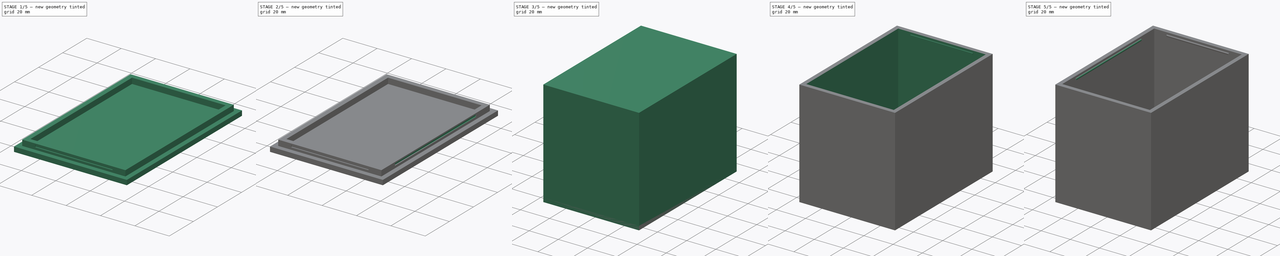
[diagram: build sequence overview — one tinted view per stage of 5, left to right]
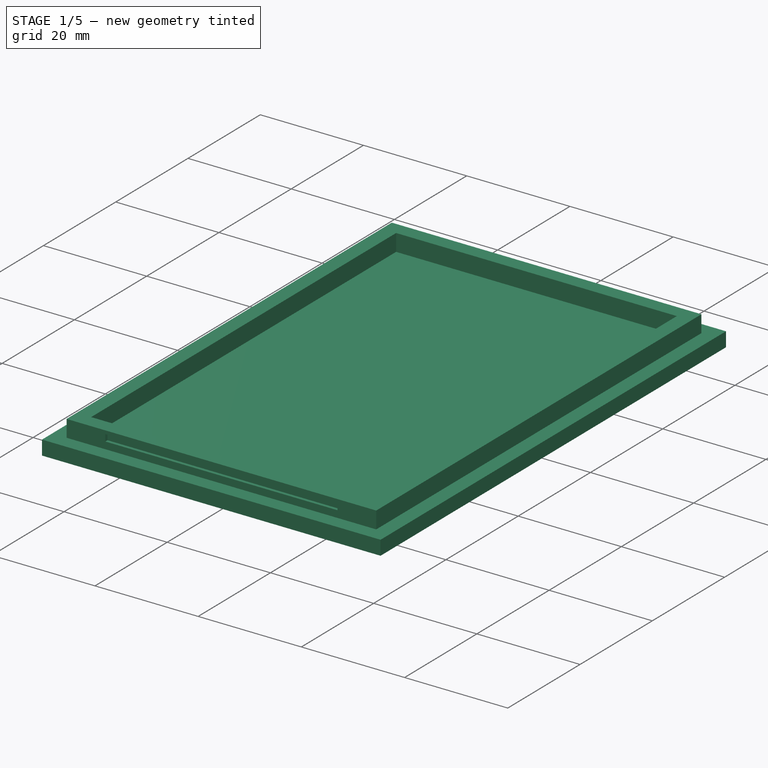
[diagram: stage 1 of 5 — iso view after this stage's code; geometry added in this stage tinted green]
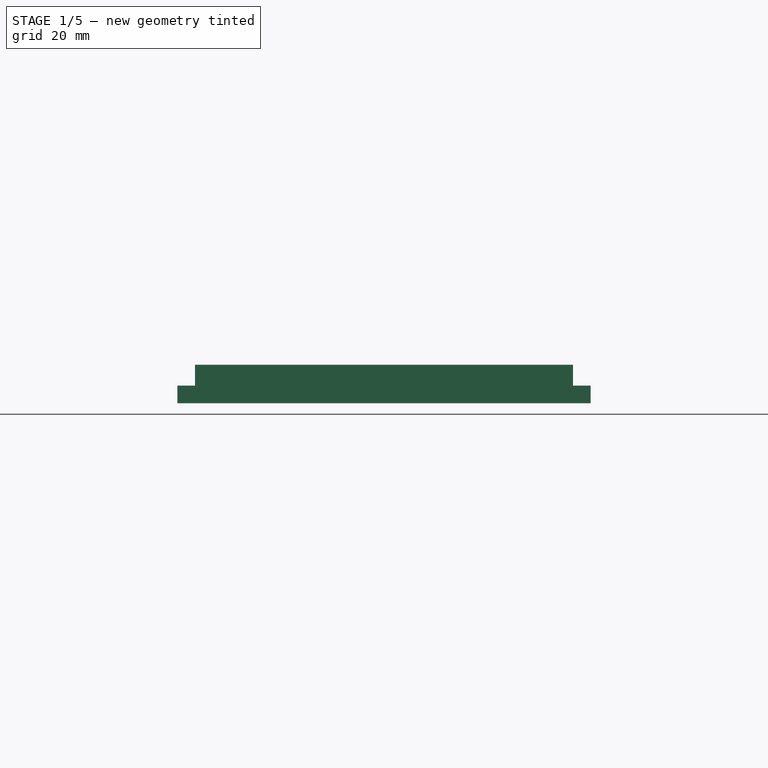
[diagram: stage 1 of 5 — front view after this stage's code; geometry added in this stage tinted green]
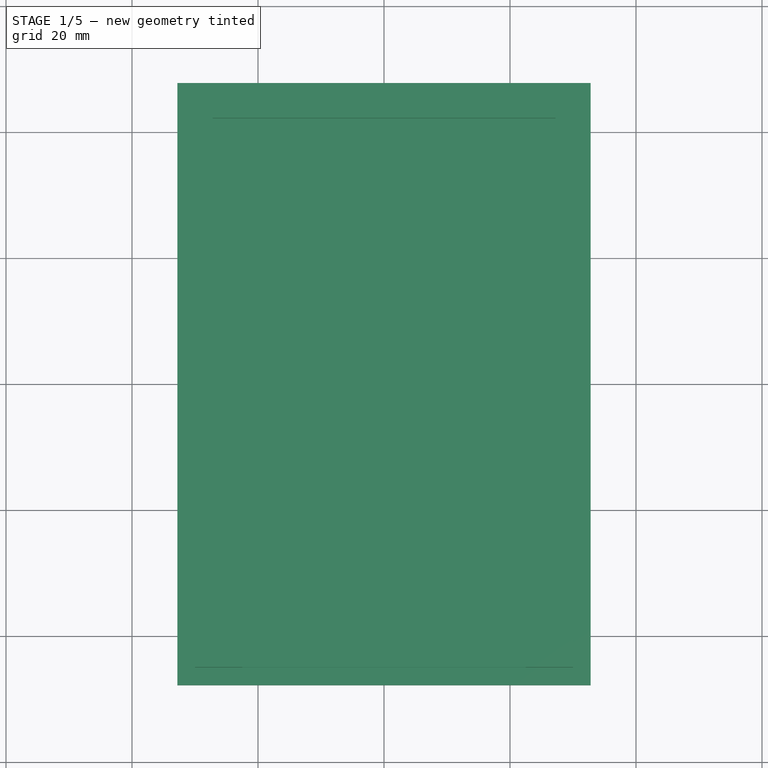
[diagram: stage 1 of 5 — top view after this stage's code; geometry added in this stage tinted green]
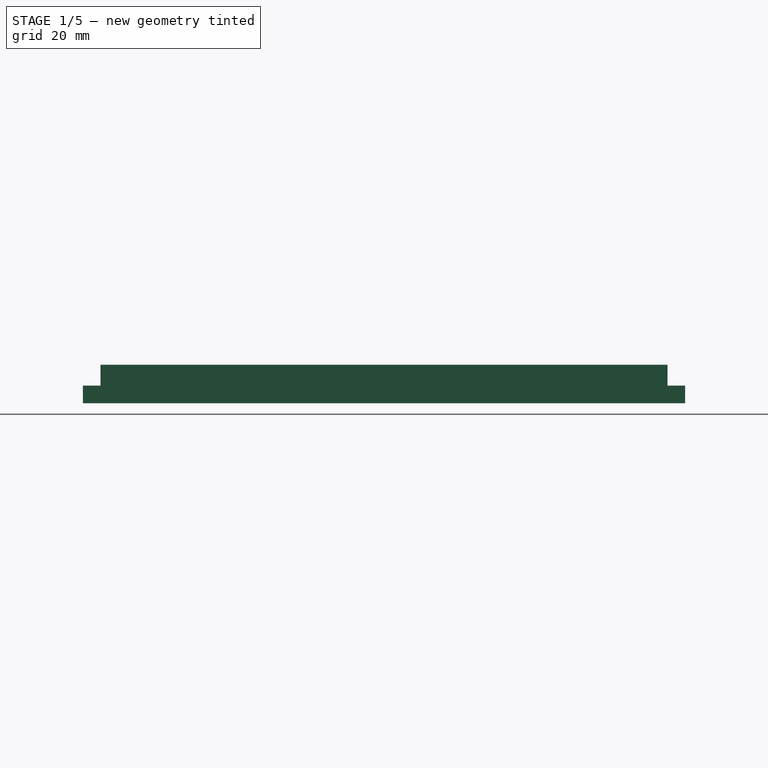
[diagram: stage 1 of 5 — right view after this stage's code; geometry added in this stage tinted green]
FCSTD DOCUMENT  (FreeCAD 0.19R)
Label: boitier
License: CreativeCommons Attribution-ShareAlike
LicenseURL: http://creativecommons.org/licenses/by-sa/4.0/
objects: Sketcher::SketchObject×15, PartDesign::Pad×7, PartDesign::Pocket×7, PartDesign::Fillet×2, PartDesign::Body×2, Spreadsheet::Sheet×1, PartDesign::Chamfer×1, App::MeasureDistance×1, PartDesign::Hole×1, App::Part×1
note: 53 computed .brp shape members not serialized (recipe doc carries the construction recipe); baked Part::Feature solids carry a one-line shape summary decoded from their .brp

FEATURE [Sketcher::SketchObject] Sketch006
  FullyConstrained = true
  MapMode = 5
  Support = -> [XY_Plane002]
  expr: Constraints[13] = <<vars>>.outsideWidth
  expr: Constraints[12] = <<vars>>.outsideLength
  sketch-geometry (5):
    g0: LineSegment StartX=32.8 StartY=-47.8 StartZ=0 EndX=32.8 EndY=47.8 EndZ=0
    g1: LineSegment StartX=32.8 StartY=47.8 StartZ=0 EndX=-32.8 EndY=47.8 EndZ=0
    g2: LineSegment StartX=-32.8 StartY=47.8 StartZ=0 EndX=-32.8 EndY=-47.8 EndZ=0
    g3: LineSegment StartX=-32.8 StartY=-47.8 StartZ=0 EndX=32.8 EndY=-47.8 EndZ=0
    g4: Circle CenterX=0 CenterY=0 CenterZ=0 NormalX=0 NormalY=0 NormalZ=1 AngleXU=0 Radius=57.9714
  constraints (14):
    c: Coincident(g0,g1)
    c: Coincident(g1,g2)
    c: Coincident(g2,g3)
    c: Coincident(g3,g0)
    c: PointOnObject(g0,g4)
    c: PointOnObject(g1,g4)
    c: PointOnObject(g2,g4)
    c: PointOnObject(g3,g4)
    c: Coincident(g4,g-1)
    c: Equal(g2,g0)
    c: Equal(g1,g3)
    c: Vertical(g2)
    c: DistanceY(g2,g2) = 95.6
    c: DistanceX(g1,g1) = 65.6
FEATURE [PartDesign::Pad] Pad005
  AllowMultiFace = false
  Direction = (1,1,1)
  Length = 2.8
  Length2 = 100
  Profile = -> Sketch006
  Type = 0
  expr: Length = <<vars>>.wallThickness
FEATURE [Sketcher::SketchObject] Sketch007
  FullyConstrained = true
  MapMode = 5
  Placement = pos=(0,0,2.8) rot=(0,0,1;0rad)
  Support = -> [Pad005]
  expr: Constraints[13] = <<vars>>.insideWidth
  expr: Constraints[12] = <<vars>>.insideLength
  sketch-geometry (5):
    g0: LineSegment StartX=30 StartY=-45 StartZ=0 EndX=30 EndY=45 EndZ=0
    g1: LineSegment StartX=30 StartY=45 StartZ=0 EndX=-30 EndY=45 EndZ=0
    g2: LineSegment StartX=-30 StartY=45 StartZ=0 EndX=-30 EndY=-45 EndZ=0
    g3: LineSegment StartX=-30 StartY=-45 StartZ=0 EndX=30 EndY=-45 EndZ=0
    g4: Circle CenterX=0 CenterY=0 CenterZ=0 NormalX=0 NormalY=0 NormalZ=1 AngleXU=0 Radius=54.0833
  constraints (14):
    c: Coincident(g0,g1)
    c: Coincident(g1,g2)
    c: Coincident(g2,g3)
    c: Coincident(g3,g0)
    c: PointOnObject(g0,g4)
    c: PointOnObject(g1,g4)
    c: PointOnObject(g2,g4)
    c: PointOnObject(g3,g4)
    c: Coincident(g4,g-1)
    c: Equal(g2,g0)
    c: Equal(g1,g3)
    c: Horizontal(g1)
    c: DistanceY(g2,g2) = 90
    c: DistanceX(g1,g1) = 60
FEATURE [PartDesign::Pad] Pad006
  AllowMultiFace = false
  BaseFeature = -> Pad005
  Direction = (1,1,1)
  Length = 3.3
  Length2 = 100
  Profile = -> Sketch007
  Type = 0
  expr: Length = <<vars>>.lidLipDepth
FEATURE [Sketcher::SketchObject] Sketch008
  FullyConstrained = true
  MapMode = 5
  Placement = pos=(0,0,6.1) rot=(0,0,1;0rad)
  Support = -> [Pad006]
  expr: Constraints[13] = <<vars>>.insideWidth - <<vars>>.wallThickness * 2
  expr: Constraints[12] = <<vars>>.insideLength - <<vars>>.wallThickness * 2
  sketch-geometry (5):
    g0: LineSegment StartX=27.2 StartY=-42.2 StartZ=0 EndX=27.2 EndY=42.2 EndZ=0
    g1: LineSegment StartX=27.2 StartY=42.2 StartZ=0 EndX=-27.2 EndY=42.2 EndZ=0
    g2: LineSegment StartX=-27.2 StartY=42.2 StartZ=0 EndX=-27.2 EndY=-42.2 EndZ=0
    g3: LineSegment StartX=-27.2 StartY=-42.2 StartZ=0 EndX=27.2 EndY=-42.2 EndZ=0
    g4: Circle CenterX=0 CenterY=0 CenterZ=0 NormalX=0 NormalY=0 NormalZ=1 AngleXU=0 Radius=50.2064
  constraints (14):
    c: Coincident(g0,g1)
    c: Coincident(g1,g2)
    c: Coincident(g2,g3)
    c: Coincident(g3,g0)
    c: PointOnObject(g0,g4)
    c: PointOnObject(g1,g4)
    c: PointOnObject(g2,g4)
    c: PointOnObject(g3,g4)
    c: Coincident(g4,g-1)
    c: Equal(g2,g0)
    c: Equal(g1,g3)
    c: Vertical(g2)
    c: DistanceY(g2,g2) = 84.4
    c: DistanceX(g1,g1) = 54.4
FEATURE [PartDesign::Pocket] Pocket001
  AllowMultiFace = false
  BaseFeature = -> Pad006
  Length = 3.3
  Length2 = 100
  Profile = -> Sketch008
  Type = 0
  expr: Length = <<vars>>.lidLipDepth
FEATURE [Sketcher::SketchObject] Sketch009
  ExternalGeometry = -> [Pocket001]
  FullyConstrained = true
  MapMode = 5
  Placement = pos=(5.4e-15,-45,0) rot=(1,0,0;1.5708rad)
  Support = -> [Pocket001]
  expr: Constraints[19] = <<vars>>.snapInset
  expr: Constraints[18] = <<vars>>.snapHeight
  expr: Constraints[17] = <<vars>>.snapWidthLength
  sketch-geometry (7):
    g0: LineSegment StartX=-30 StartY=2.8 StartZ=0 EndX=6.1817e-12 EndY=2.8 EndZ=0
    g1: LineSegment StartX=6.1817e-12 StartY=2.8 StartZ=0 EndX=30 EndY=2.8 EndZ=0
    g2: LineSegment StartX=22.5 StartY=5.45 StartZ=0 EndX=-22.5 EndY=5.45 EndZ=0
    g3: LineSegment StartX=-22.5 StartY=5.45 StartZ=0 EndX=-22.5 EndY=4.15 EndZ=0
    g4: LineSegment StartX=-22.5 StartY=4.15 StartZ=0 EndX=22.5 EndY=4.15 EndZ=0
    g5: LineSegment StartX=22.5 StartY=4.15 StartZ=0 EndX=22.5 EndY=5.45 EndZ=0
    g6: Circle CenterX=0 CenterY=4.8 CenterZ=0 NormalX=0 NormalY=0 NormalZ=1 AngleXU=0 Radius=22.5094
  constraints (20):
    c: Coincident(g-5,g0)
    c: Coincident(g0,g1)
    c: Coincident(g1,g-6)
    c: Equal(g1,g0)
    c: Horizontal(g1)
    c: Coincident(g2,g3)
    c: Coincident(g3,g4)
    c: Coincident(g4,g5)
    c: Coincident(g5,g2)
    c: PointOnObject(g2,g6)
    c: PointOnObject(g3,g6)
    c: PointOnObject(g4,g6)
    c: PointOnObject(g5,g6)
    c: PointOnObject(g6,g-2)
    c: Equal(g3,g5)
    c: Equal(g2,g4)
    c: Vertical(g3)
    c: DistanceX(g2,g2) = 45
    c: DistanceY(g3,g3) = 1.3
    c: DistanceY(g0,g6) = 2
FEATURE [PartDesign::Pocket] Pocket002
  AllowMultiFace = false
  BaseFeature = -> Pocket001
  Length = 0.6
  Length2 = 100
  Profile = -> Sketch009
  Type = 0
  expr: Length = <<vars>>.snapDepth
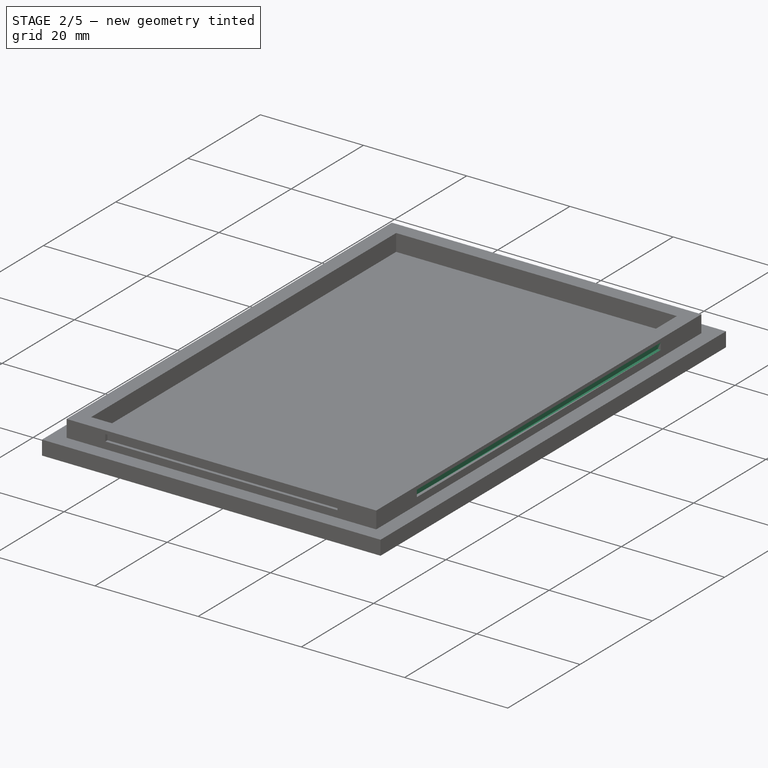
[diagram: stage 2 of 5 — iso view after this stage's code; geometry added in this stage tinted green]
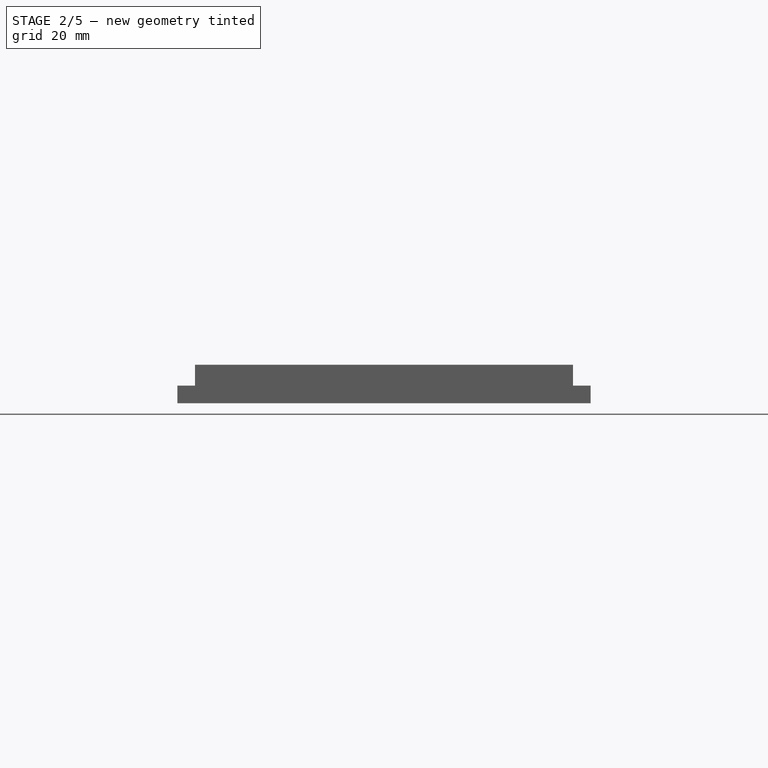
[diagram: stage 2 of 5 — front view after this stage's code; geometry added in this stage tinted green]
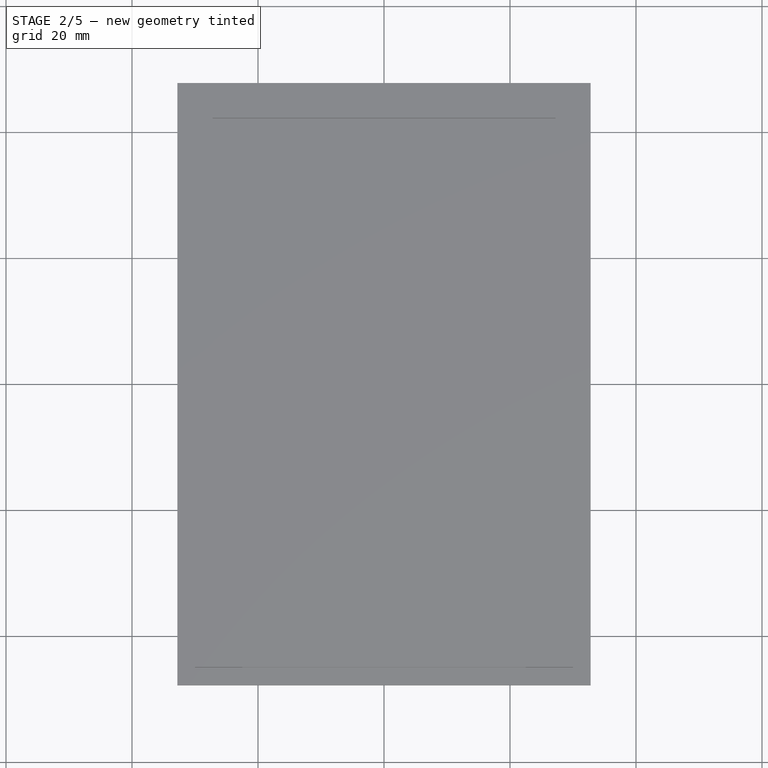
[diagram: stage 2 of 5 — top view after this stage's code; geometry added in this stage tinted green]
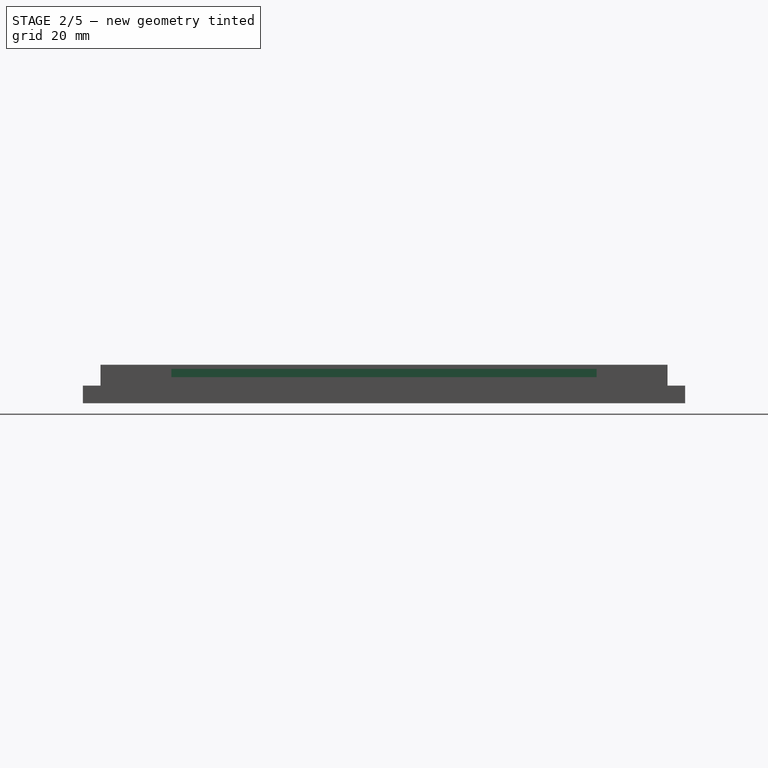
[diagram: stage 2 of 5 — right view after this stage's code; geometry added in this stage tinted green]
FEATURE [Sketcher::SketchObject] Sketch010
  ExternalGeometry = -> [Pocket002]
  FullyConstrained = true
  MapMode = 5
  Placement = pos=(0,45,0) rot=(0,0.707107,0.707107;3.14159rad)
  Support = -> [Pocket002]
  expr: Constraints[19] = <<vars>>.snapInset
  expr: Constraints[13] = <<vars>>.snapWidthLength
  expr: Constraints[12] = <<vars>>.snapHeight
  sketch-geometry (7):
    g0: LineSegment StartX=22.5 StartY=5.45 StartZ=0 EndX=-22.5 EndY=5.45 EndZ=0
    g1: LineSegment StartX=-22.5 StartY=5.45 StartZ=0 EndX=-22.5 EndY=4.15 EndZ=0
    g2: LineSegment StartX=-22.5 StartY=4.15 StartZ=0 EndX=22.5 EndY=4.15 EndZ=0
    g3: LineSegment StartX=22.5 StartY=4.15 StartZ=0 EndX=22.5 EndY=5.45 EndZ=0
    g4: Circle CenterX=0 CenterY=4.8 CenterZ=0 NormalX=0 NormalY=0 NormalZ=1 AngleXU=0 Radius=22.5094
    g5: LineSegment StartX=-30 StartY=2.8 StartZ=0 EndX=3.6e-15 EndY=2.8 EndZ=0
    g6: LineSegment StartX=4.5e-15 StartY=2.8 StartZ=0 EndX=30 EndY=2.8 EndZ=0
  constraints (20):
    c: Coincident(g0,g1)
    c: Coincident(g1,g2)
    c: Coincident(g2,g3)
    c: Coincident(g3,g0)
    c: Equal(g0,g2)
    c: PointOnObject(g0,g4)
    c: PointOnObject(g1,g4)
    c: PointOnObject(g2,g4)
    c: PointOnObject(g3,g4)
    c: PointOnObject(g4,g-2)
    c: Equal(g1,g3)
    c: Horizontal(g0)
    c: DistanceY(g1,g1) = 1.3
    c: DistanceX(g0,g0) = 45
    c: Coincident(g-5,g5)
    c: Coincident(g5,g6)
    c: Coincident(g6,g-6)
    c: Equal(g6,g5)
    c: Horizontal(g5)
    c: DistanceY(g5,g4) = 2
FEATURE [PartDesign::Pocket] Pocket003
  AllowMultiFace = false
  BaseFeature = -> Pocket002
  Length = 0.6
  Length2 = 100
  Profile = -> Sketch010
  Type = 0
  expr: Length = <<vars>>.snapDepth
FEATURE [Sketcher::SketchObject] Sketch011
  ExternalGeometry = -> [Pocket003]
  FullyConstrained = true
  MapMode = 5
  Placement = pos=(30,2.20113e-11,0) rot=(0.57735,0.57735,0.57735;2.0944rad)
  Support = -> [Pocket003]
  expr: Constraints[19] = <<vars>>.snapInset
  expr: Constraints[18] = <<vars>>.snapLengthLength
  expr: Constraints[17] = <<vars>>.snapHeight
  sketch-geometry (7):
    g0: LineSegment StartX=-45 StartY=2.8 StartZ=0 EndX=-1.50635e-11 EndY=2.8 EndZ=0
    g1: LineSegment StartX=-1.50635e-11 StartY=2.8 StartZ=0 EndX=45 EndY=2.8 EndZ=0
    g2: LineSegment StartX=33.75 StartY=4.15 StartZ=0 EndX=33.75 EndY=5.45 EndZ=0
    g3: LineSegment StartX=33.75 StartY=5.45 StartZ=0 EndX=-33.75 EndY=5.45 EndZ=0
    g4: LineSegment StartX=-33.75 StartY=5.45 StartZ=0 EndX=-33.75 EndY=4.15 EndZ=0
    g5: LineSegment StartX=-33.75 StartY=4.15 StartZ=0 EndX=33.75 EndY=4.15 EndZ=0
    g6: Circle CenterX=0 CenterY=4.8 CenterZ=0 NormalX=0 NormalY=0 NormalZ=1 AngleXU=0 Radius=33.7563
  constraints (20):
    c: Coincident(g-6,g0)
    c: Coincident(g0,g1)
    c: Coincident(g1,g-5)
    c: Equal(g0,g1)
    c: Horizontal(g1)
    c: Coincident(g2,g3)
    c: Coincident(g3,g4)
    c: Coincident(g4,g5)
    c: Coincident(g5,g2)
    c: Equal(g2,g4)
    c: PointOnObject(g2,g6)
    c: PointOnObject(g3,g6)
    c: PointOnObject(g4,g6)
    c: PointOnObject(g5,g6)
    c: PointOnObject(g6,g-2)
    c: Equal(g3,g5)
    c: Horizontal(g3)
    c: DistanceY(g4,g4) = 1.3
    c: DistanceX(g5,g5) = 67.5
    c: DistanceY(g0,g6) = 2
FEATURE [PartDesign::Pocket] Pocket004
  AllowMultiFace = false
  BaseFeature = -> Pocket003
  Length = 0.6
  Length2 = 100
  Profile = -> Sketch011
  Type = 0
  expr: Length = <<vars>>.snapDepth
FEATURE [Sketcher::SketchObject] Sketch012
  ExternalGeometry = -> [Pocket004]
  FullyConstrained = true
  MapMode = 5
  Placement = pos=(-30,7.2003e-12,0) rot=(-0.57735,0.57735,0.57735;4.18879rad)
  Support = -> [Pocket004]
  expr: Constraints[19] = <<vars>>.snapInset
  expr: Constraints[18] = <<vars>>.snapLengthLength
  expr: Constraints[17] = <<vars>>.snapHeight
  sketch-geometry (7):
    g0: LineSegment StartX=-45 StartY=2.8 StartZ=0 EndX=2.487e-13 EndY=2.8 EndZ=0
    g1: LineSegment StartX=2.504e-13 StartY=2.8 StartZ=0 EndX=45 EndY=2.8 EndZ=0
    g2: LineSegment StartX=33.75 StartY=4.15 StartZ=0 EndX=33.75 EndY=5.45 EndZ=0
    g3: LineSegment StartX=33.75 StartY=5.45 StartZ=0 EndX=-33.75 EndY=5.45 EndZ=0
    g4: LineSegment StartX=-33.75 StartY=5.45 StartZ=0 EndX=-33.75 EndY=4.15 EndZ=0
    g5: LineSegment StartX=-33.75 StartY=4.15 StartZ=0 EndX=33.75 EndY=4.15 EndZ=0
    g6: Circle CenterX=0 CenterY=4.8 CenterZ=0 NormalX=0 NormalY=0 NormalZ=1 AngleXU=0 Radius=33.7563
  constraints (20):
    c: Coincident(g-5,g0)
    c: Coincident(g0,g1)
    c: Coincident(g1,g-6)
    c: Equal(g0,g1)
    c: Horizontal(g1)
    c: Coincident(g2,g3)
    c: Coincident(g3,g4)
    c: Coincident(g4,g5)
    c: Coincident(g5,g2)
    c: Equal(g2,g4)
    c: PointOnObject(g2,g6)
    c: PointOnObject(g3,g6)
    c: PointOnObject(g4,g6)
    c: PointOnObject(g5,g6)
    c: PointOnObject(g6,g-2)
    c: Equal(g3,g5)
    c: Horizontal(g3)
    c: DistanceY(g4,g4) = 1.3
    c: DistanceX(g3,g3) = 67.5
    c: DistanceY(g0,g6) = 2
FEATURE [PartDesign::Pocket] Pocket005
  AllowMultiFace = false
  BaseFeature = -> Pocket004
  Length = 0.6
  Length2 = 100
  Profile = -> Sketch012
  Type = 0
  expr: Length = <<vars>>.snapDepth
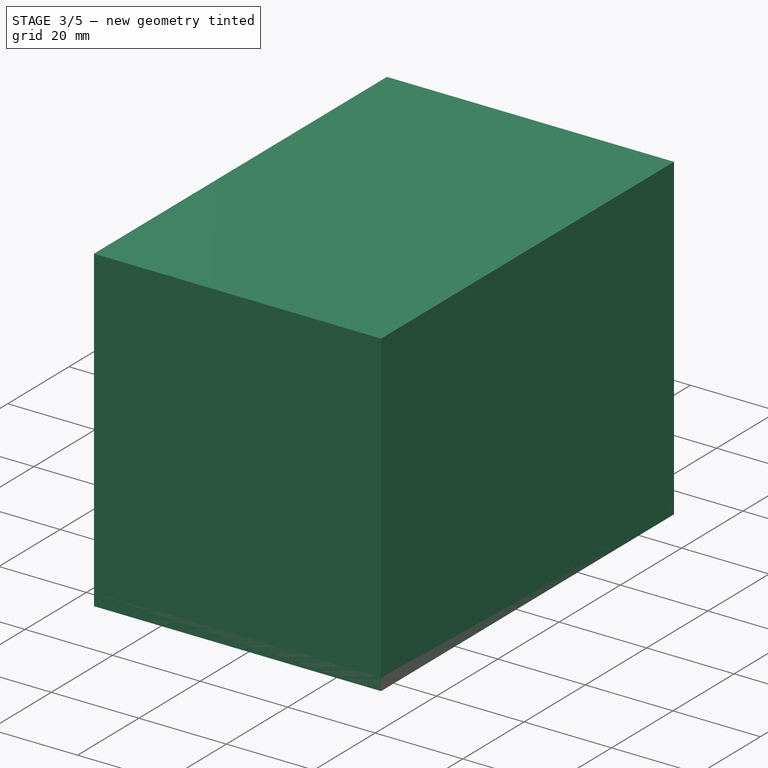
[diagram: stage 3 of 5 — iso view after this stage's code; geometry added in this stage tinted green]
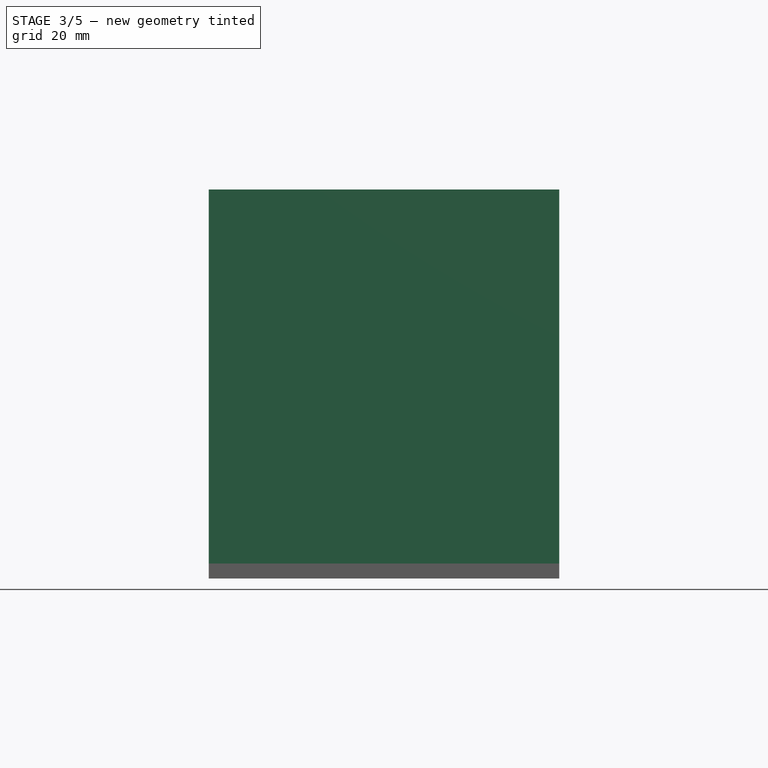
[diagram: stage 3 of 5 — front view after this stage's code; geometry added in this stage tinted green]
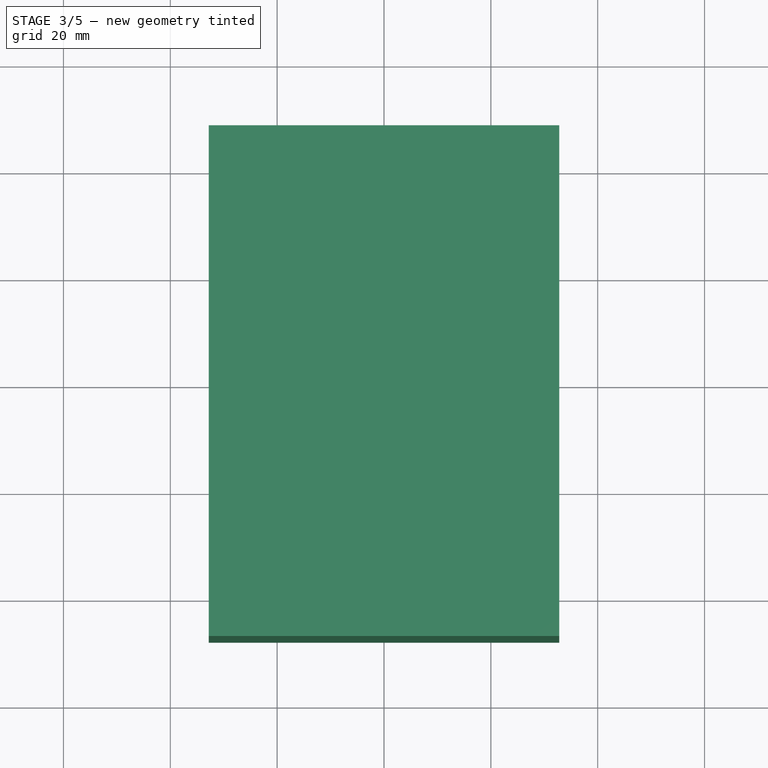
[diagram: stage 3 of 5 — top view after this stage's code; geometry added in this stage tinted green]
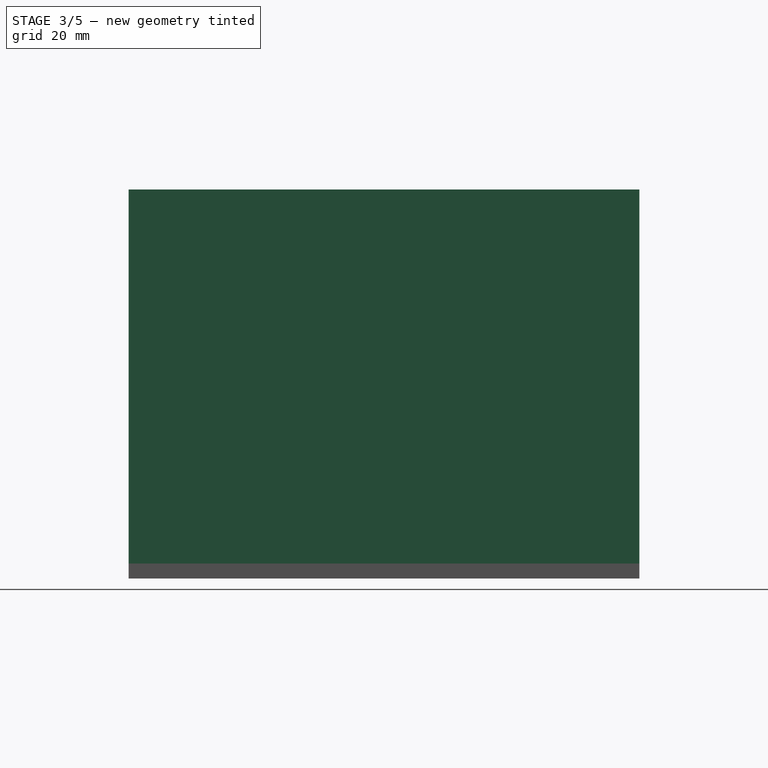
[diagram: stage 3 of 5 — right view after this stage's code; geometry added in this stage tinted green]
FEATURE [Spreadsheet::Sheet] Spreadsheet  label="vars"
  cells = A1=Inside Length; B1(insideLength)=90; C1=ADJUST ME; A2=Inside Width; B2(insideWidth)=60; C2=ADJUST ME; A3=Inside Height; B3(insideHeight)=70; C3=ADJUST ME; A4=Wall Thickness; B4(wallThickness)=2.8; C4=ADJUST ME; A5=Snap Height; B5(snapHeight)=1.3; C5=dk green = optional; A6=Snap Bump Height; B6(snapBumpHeight)==B5 * 0.9; C6=calc; A7=Snap Inset; B7(snapInset)=2; C7=SnapLengthLength; D7=SnapWidthLength; A8=Snap Ratio; B8=0.75; C8(snapLengthLength)==B1 * B8; D8(snapWidthLength)==B2 * B8; E8=calc; C9=SnapBumpLengthLength; D9=SnapBumpWidthLength; C10(snapBumpLengthLength)==C8 * 0.95; D10(snapBumpWidthLength)==D8 * 0.95; E10=calc; A11=Snap Depth; B11(snapDepth)=0.6; C11=Snap tightness; A12=Snap Fillet; B12(snapFillet)==B11 * 0.75; C12=calc; A13=Outside Length; B13(outsideLength)==B1 + B4 * 2; C13=calc; A14=Outside Width; B14(outsideWidth)==B2 + B4 * 2; C14=calc; A15=Outside Height; B15(outsideHeight)==B3 + B4; C15=calc; A16=Lid Lip Depth; B16(lidLipDepth)==B7 + B5; C16=calc; A17=Lid Chamfer; B17(lidChamfer)=0.6
FEATURE [Sketcher::SketchObject] Sketch
  FullyConstrained = true
  MapMode = 5
  Support = -> [XY_Plane]
  expr: Constraints[13] = <<vars>>.outsideWidth
  expr: Constraints[12] = <<vars>>.outsideLength
  sketch-geometry (5):
    g0: LineSegment StartX=32.8 StartY=-47.8 StartZ=0 EndX=32.8 EndY=47.8 EndZ=0
    g1: LineSegment StartX=32.8 StartY=47.8 StartZ=0 EndX=-32.8 EndY=47.8 EndZ=0
    g2: LineSegment StartX=-32.8 StartY=47.8 StartZ=0 EndX=-32.8 EndY=-47.8 EndZ=0
    g3: LineSegment StartX=-32.8 StartY=-47.8 StartZ=0 EndX=32.8 EndY=-47.8 EndZ=0
    g4: Circle CenterX=0 CenterY=0 CenterZ=0 NormalX=0 NormalY=0 NormalZ=1 AngleXU=0 Radius=57.9714
  constraints (14):
    c: Coincident(g0,g1)
    c: Coincident(g1,g2)
    c: Coincident(g2,g3)
    c: Coincident(g3,g0)
    c: PointOnObject(g0,g4)
    c: PointOnObject(g1,g4)
    c: PointOnObject(g2,g4)
    c: PointOnObject(g3,g4)
    c: Coincident(g4,g-1)
    c: Equal(g0,g2)
    c: Equal(g1,g3)
    c: Horizontal(g1)
    c: DistanceY(g2,g2) = 95.6
    c: DistanceX(g1,g1) = 65.6
FEATURE [PartDesign::Pad] Pad
  AllowMultiFace = false
  Direction = (1,1,1)
  Length = 72.8
  Length2 = 100
  Profile = -> Sketch
  Type = 0
  expr: Length = <<vars>>.outsideHeight
FEATURE [PartDesign::Fillet] Fillet001
  Base = -> Pocket005 [Face33,Face32,Face35,Face34]
  BaseFeature = -> Pocket005
  Radius = 0.45
  SupportTransform = false
  expr: Radius = <<vars>>.snapFillet
FEATURE [PartDesign::Chamfer] Chamfer
  Angle = 45
  Base = -> Fillet001 [Face12]
  BaseFeature = -> Fillet001
  ChamferType = 0
  FlipDirection = false
  Size = 0.6
  Size2 = 1
  SupportTransform = false
  expr: Size = <<vars>>.lidChamfer
FEATURE [PartDesign::Body] Body  label="Box"
  Group = -> [Sketch,Pad,Sketch001,Pocket,Sketch002,Pad001,Sketch003,Pad002,Sketch004,Pad003,Sketch005,Pad004,Fillet,Sketch013,Hole]
  Origin = -> Origin
  Tip = -> Hole
FEATURE [Sketcher::SketchObject] Sketch014
  FullyConstrained = false
  MapMode = 5
  Support = -> [XY_Plane002]
  sketch-geometry (2):
    g0: Circle CenterX=0 CenterY=20.4385 CenterZ=0 NormalX=0 NormalY=0 NormalZ=1 AngleXU=0 Radius=7.5
    g1: Circle CenterX=0 CenterY=-20 CenterZ=0 NormalX=0 NormalY=0 NormalZ=1 AngleXU=0 Radius=15
  constraints (2):
    c: Radius(g0) = 7.5
    c: Radius(g1) = 15
FEATURE [PartDesign::Pocket] Pocket006
  BaseFeature = -> Chamfer
  Length = 5
  Length2 = 100
  Profile = -> Sketch014
  Reversed = true
  Type = 0
FEATURE [PartDesign::Body] Body001  label="Lid"
  Group = -> [Sketch006,Pad005,Sketch007,Pad006,Sketch008,Pocket001,Sketch009,Pocket002,Sketch010,Pocket003,Sketch011,Pocket004,Sketch012,Pocket005,Fillet001,Chamfer,Sketch014,Pocket006]
  Origin = -> Origin002
  Placement = pos=(68.4,0,0) rot=(0,0,1;0rad)
  Tip = -> Pocket006
  expr: .Placement.Base.x = <<vars>>.outsideWidth + <<vars>>.wallThickness
FEATURE [App::Part] Part  label="Snapbox Pristine"
  Group = -> [Body,Body001]
  Origin = -> Origin001
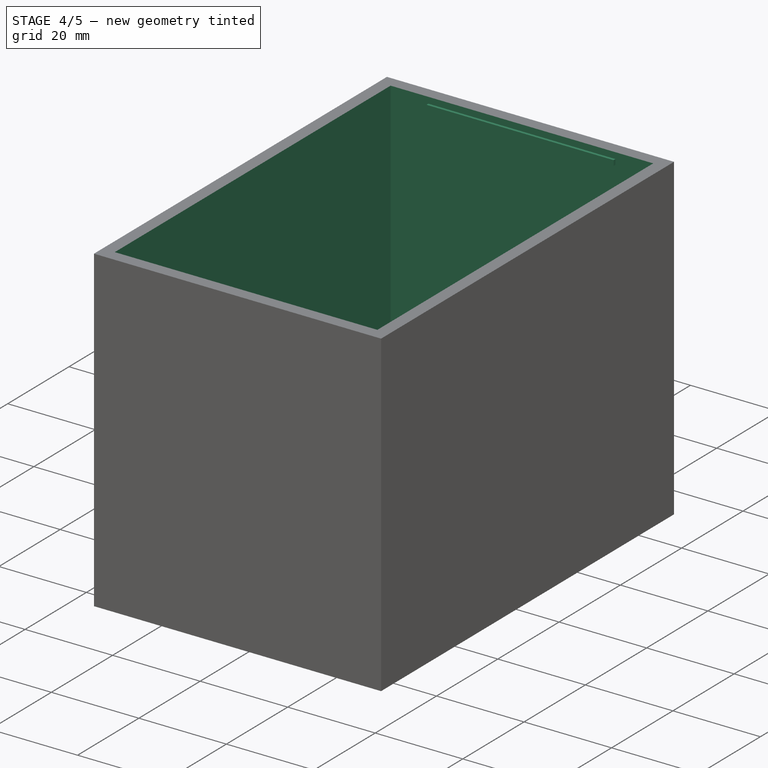
[diagram: stage 4 of 5 — iso view after this stage's code; geometry added in this stage tinted green]
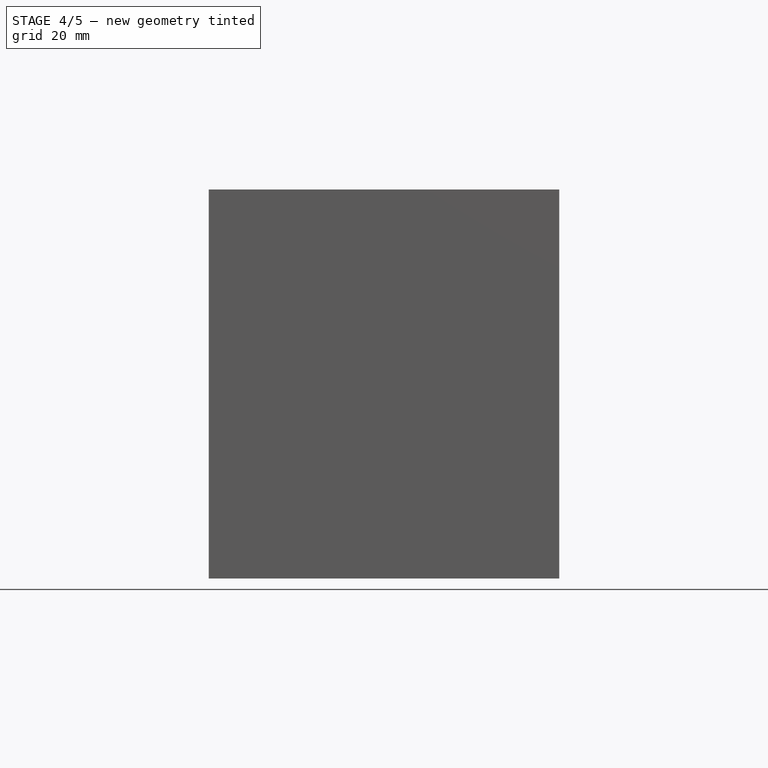
[diagram: stage 4 of 5 — front view after this stage's code; geometry added in this stage tinted green]
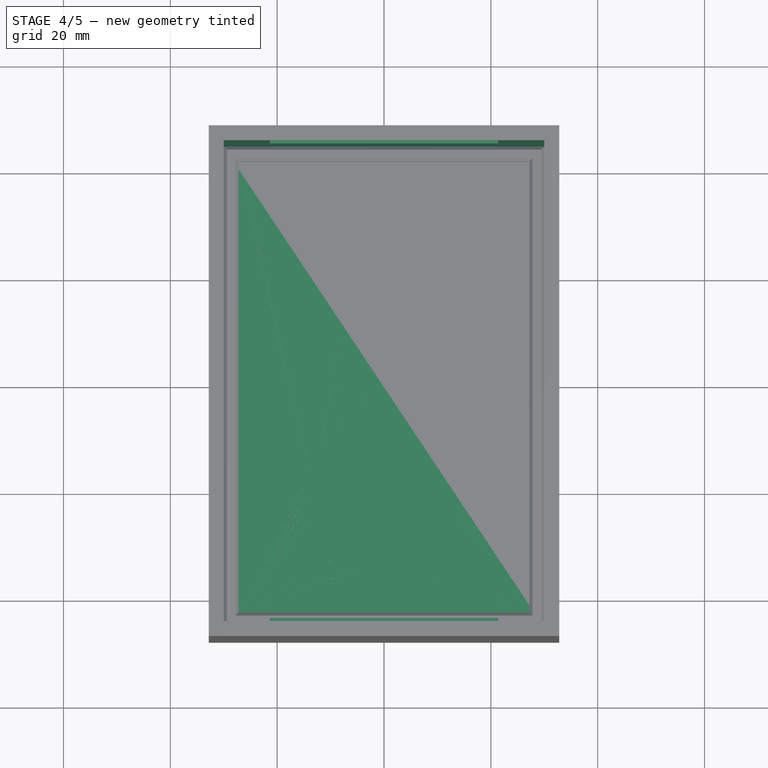
[diagram: stage 4 of 5 — top view after this stage's code; geometry added in this stage tinted green]
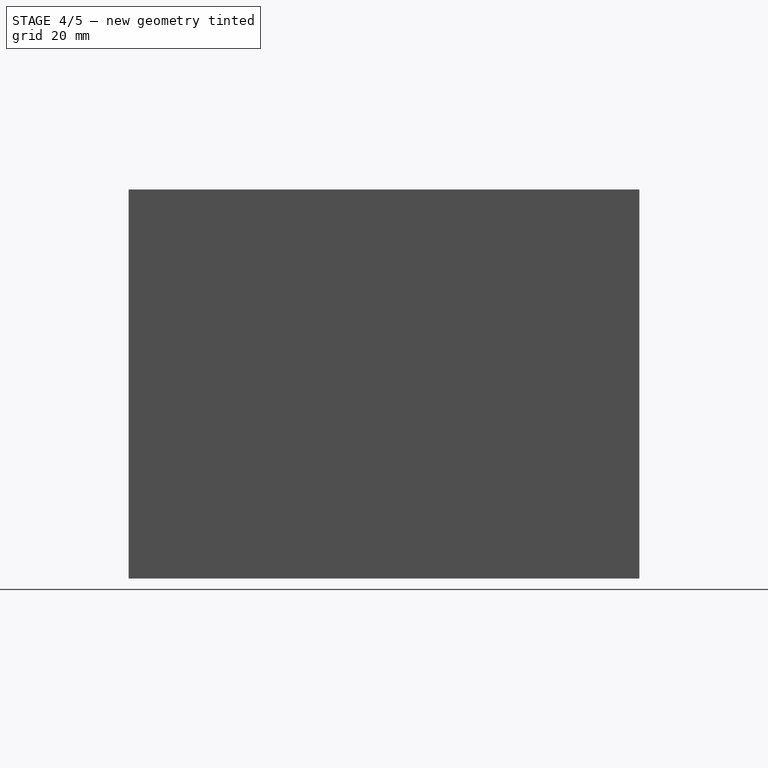
[diagram: stage 4 of 5 — right view after this stage's code; geometry added in this stage tinted green]
FEATURE [Sketcher::SketchObject] Sketch001
  ExternalGeometry = -> [Pad]
  FullyConstrained = true
  MapMode = 5
  Placement = pos=(0,0,72.8) rot=(0,0,1;0rad)
  Support = -> [Pad]
  expr: Constraints[13] = <<vars>>.insideWidth
  expr: Constraints[12] = <<vars>>.insideLength
  sketch-geometry (5):
    g0: LineSegment StartX=30 StartY=-45 StartZ=0 EndX=30 EndY=45 EndZ=0
    g1: LineSegment StartX=30 StartY=45 StartZ=0 EndX=-30 EndY=45 EndZ=0
    g2: LineSegment StartX=-30 StartY=45 StartZ=0 EndX=-30 EndY=-45 EndZ=0
    g3: LineSegment StartX=-30 StartY=-45 StartZ=0 EndX=30 EndY=-45 EndZ=0
    g4: Circle CenterX=0 CenterY=0 CenterZ=0 NormalX=0 NormalY=0 NormalZ=1 AngleXU=0 Radius=54.0833
  constraints (14):
    c: Coincident(g0,g1)
    c: Coincident(g1,g2)
    c: Coincident(g2,g3)
    c: Coincident(g3,g0)
    c: PointOnObject(g0,g4)
    c: PointOnObject(g1,g4)
    c: PointOnObject(g2,g4)
    c: PointOnObject(g3,g4)
    c: Coincident(g4,g-1)
    c: Equal(g2,g0)
    c: Equal(g1,g3)
    c: Horizontal(g1)
    c: DistanceY(g0,g0) = 90
    c: DistanceX(g1,g1) = 60
FEATURE [PartDesign::Pocket] Pocket
  AllowMultiFace = false
  BaseFeature = -> Pad
  Length = 70
  Length2 = 100
  Profile = -> Sketch001
  Type = 0
  expr: Length = <<vars>>.insideHeight
FEATURE [Sketcher::SketchObject] Sketch002
  ExternalGeometry = -> [Pocket]
  FullyConstrained = true
  MapMode = 5
  Placement = pos=(0,-45,0) rot=(0,0.707107,0.707107;3.14159rad)
  Support = -> [Pocket]
  expr: Constraints[19] = <<vars>>.snapInset
  expr: Constraints[13] = <<vars>>.snapBumpHeight
  expr: Constraints[12] = <<vars>>.snapBumpWidthLength
  sketch-geometry (7):
    g0: LineSegment StartX=21.375 StartY=71.385 StartZ=0 EndX=-21.375 EndY=71.385 EndZ=0
    g1: LineSegment StartX=-21.375 StartY=71.385 StartZ=0 EndX=-21.375 EndY=70.215 EndZ=0
    g2: LineSegment StartX=-21.375 StartY=70.215 StartZ=0 EndX=21.375 EndY=70.215 EndZ=0
    g3: LineSegment StartX=21.375 StartY=70.215 StartZ=0 EndX=21.375 EndY=71.385 EndZ=0
    g4: Circle CenterX=0 CenterY=70.8 CenterZ=0 NormalX=0 NormalY=0 NormalZ=1 AngleXU=0 Radius=21.383
    g5: LineSegment StartX=32.8 StartY=72.8 StartZ=0 EndX=-1.46372e-11 EndY=72.8 EndZ=0
    g6: LineSegment StartX=-1.46392e-11 StartY=72.8 StartZ=0 EndX=-32.8 EndY=72.8 EndZ=0
  constraints (20):
    c: Coincident(g0,g1)
    c: Coincident(g1,g2)
    c: Coincident(g2,g3)
    c: Coincident(g3,g0)
    c: PointOnObject(g0,g4)
    c: PointOnObject(g1,g4)
    c: PointOnObject(g2,g4)
    c: PointOnObject(g3,g4)
    c: PointOnObject(g4,g-2)
    c: Equal(g3,g1)
    c: Equal(g0,g2)
    c: Horizontal(g0)
    c: DistanceX(g0,g0) = 42.75
    c: DistanceY(g1,g1) = 1.17
    c: Coincident(g-4,g5)
    c: Coincident(g5,g6)
    c: Coincident(g6,g-5)
    c: Equal(g6,g5)
    c: Horizontal(g6)
    c: DistanceY(g4,g5) = 2
FEATURE [PartDesign::Pad] Pad001
  AllowMultiFace = false
  BaseFeature = -> Pocket
  Direction = (1,1,1)
  Length = 0.6
  Length2 = 100
  Profile = -> Sketch002
  Type = 0
  expr: Length = <<vars>>.snapDepth
FEATURE [Sketcher::SketchObject] Sketch003
  ExternalGeometry = -> [Pad001]
  FullyConstrained = true
  MapMode = 5
  Placement = pos=(0,45,0) rot=(1,0,0;1.5708rad)
  Support = -> [Pad001]
  expr: Constraints[19] = <<vars>>.snapInset
  expr: Constraints[13] = <<vars>>.snapBumpWidthLength
  expr: Constraints[12] = <<vars>>.snapBumpHeight
  sketch-geometry (7):
    g0: LineSegment StartX=21.375 StartY=70.215 StartZ=0 EndX=21.375 EndY=71.385 EndZ=0
    g1: LineSegment StartX=21.375 StartY=71.385 StartZ=0 EndX=-21.375 EndY=71.385 EndZ=0
    g2: LineSegment StartX=-21.375 StartY=71.385 StartZ=0 EndX=-21.375 EndY=70.215 EndZ=0
    g3: LineSegment StartX=-21.375 StartY=70.215 StartZ=0 EndX=21.375 EndY=70.215 EndZ=0
    g4: Circle CenterX=0 CenterY=70.8 CenterZ=0 NormalX=0 NormalY=0 NormalZ=1 AngleXU=0 Radius=21.383
    g5: LineSegment StartX=-32.8 StartY=72.8 StartZ=0 EndX=1.46372e-11 EndY=72.8 EndZ=0
    g6: LineSegment StartX=1.46364e-11 StartY=72.8 StartZ=0 EndX=32.8 EndY=72.8 EndZ=0
  constraints (20):
    c: Coincident(g0,g1)
    c: Coincident(g1,g2)
    c: Coincident(g2,g3)
    c: Coincident(g3,g0)
    c: PointOnObject(g0,g4)
    c: PointOnObject(g1,g4)
    c: PointOnObject(g2,g4)
    c: PointOnObject(g3,g4)
    c: Equal(g0,g2)
    c: Equal(g1,g3)
    c: Horizontal(g1)
    c: PointOnObject(g4,g-2)
    c: DistanceY(g2,g2) = 1.17
    c: DistanceX(g1,g1) = 42.75
    c: Coincident(g-4,g5)
    c: Coincident(g5,g6)
    c: Coincident(g6,g-5)
    c: Equal(g6,g5)
    c: Horizontal(g6)
    c: DistanceY(g4,g5) = 2
FEATURE [PartDesign::Pad] Pad002
  AllowMultiFace = false
  BaseFeature = -> Pad001
  Direction = (1,1,1)
  Length = 0.6
  Length2 = 100
  Profile = -> Sketch003
  Type = 0
  expr: Length = <<vars>>.snapDepth
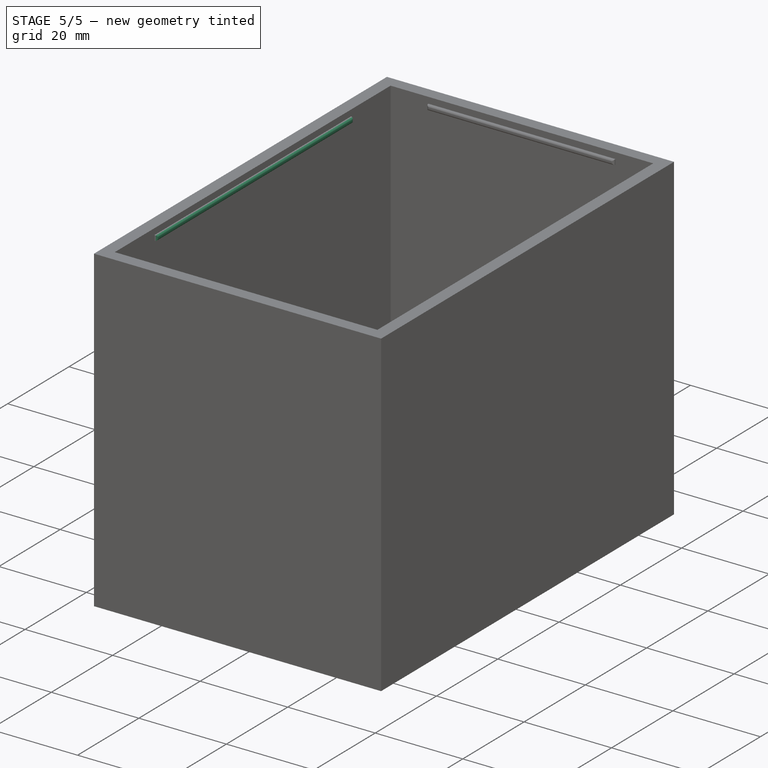
[diagram: stage 5 of 5 — iso view after this stage's code; geometry added in this stage tinted green]
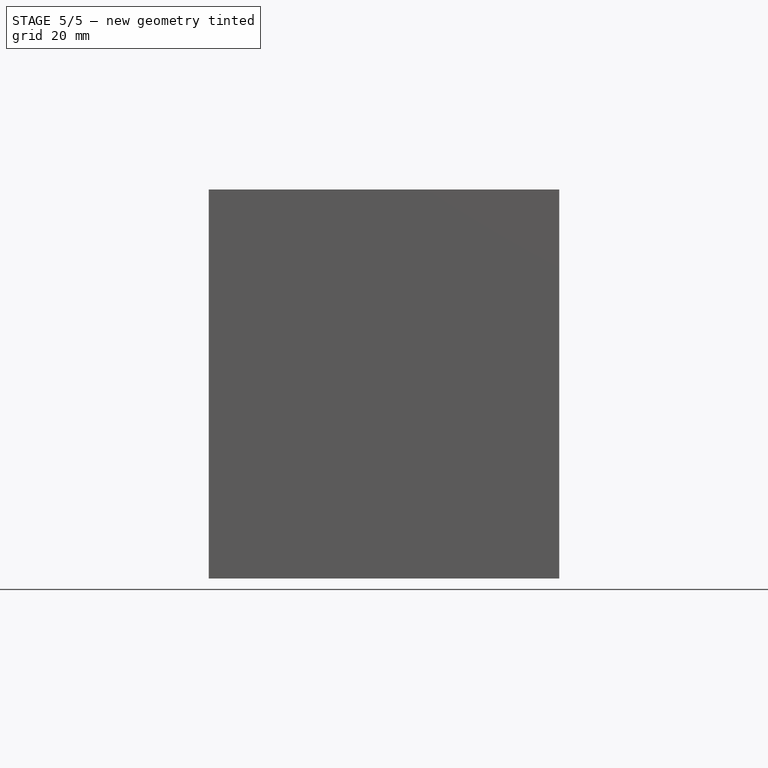
[diagram: stage 5 of 5 — front view after this stage's code; geometry added in this stage tinted green]
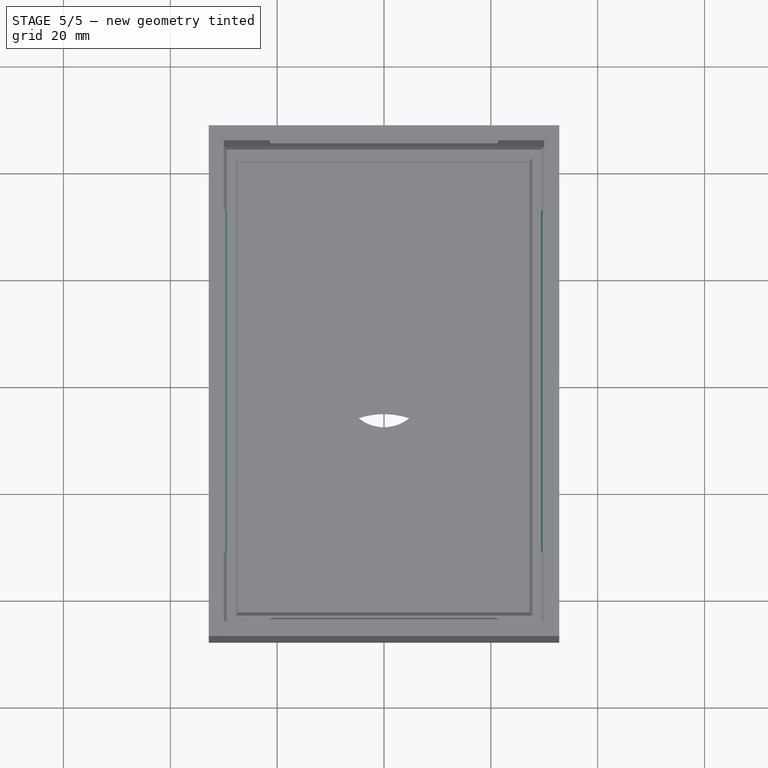
[diagram: stage 5 of 5 — top view after this stage's code; geometry added in this stage tinted green]
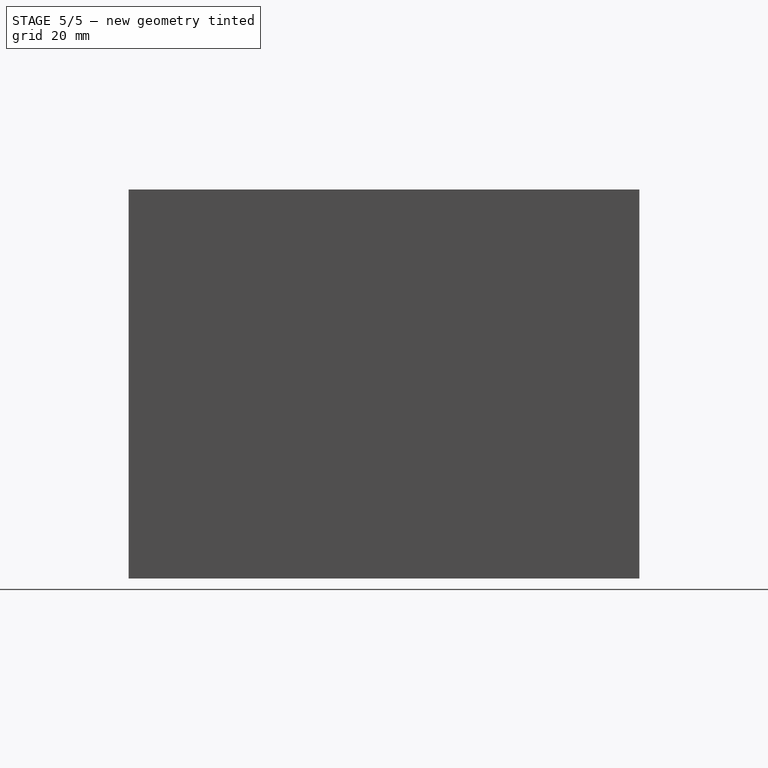
[diagram: stage 5 of 5 — right view after this stage's code; geometry added in this stage tinted green]
FEATURE [Sketcher::SketchObject] Sketch004
  ExternalGeometry = -> [Pad002]
  FullyConstrained = true
  MapMode = 5
  Placement = pos=(30,7.1955e-12,0) rot=(0.57735,-0.57735,-0.57735;2.0944rad)
  Support = -> [Pad002]
  expr: Constraints[19] = <<vars>>.snapInset
  expr: Constraints[13] = <<vars>>.snapBumpLengthLength
  expr: Constraints[12] = <<vars>>.snapBumpHeight
  sketch-geometry (7):
    g0: LineSegment StartX=32.0625 StartY=71.385 StartZ=0 EndX=-32.0625 EndY=71.385 EndZ=0
    g1: LineSegment StartX=-32.0625 StartY=71.385 StartZ=0 EndX=-32.0625 EndY=70.215 EndZ=0
    g2: LineSegment StartX=-32.0625 StartY=70.215 StartZ=0 EndX=32.0625 EndY=70.215 EndZ=0
    g3: LineSegment StartX=32.0625 StartY=70.215 StartZ=0 EndX=32.0625 EndY=71.385 EndZ=0
    g4: Circle CenterX=0 CenterY=70.8 CenterZ=0 NormalX=0 NormalY=0 NormalZ=1 AngleXU=0 Radius=32.0678
    g5: LineSegment StartX=-47.8 StartY=72.8 StartZ=0 EndX=-1.15463e-11 EndY=72.8 EndZ=0
    g6: LineSegment StartX=-1.15457e-11 StartY=72.8 StartZ=0 EndX=47.8 EndY=72.8 EndZ=0
  constraints (20):
    c: Coincident(g0,g1)
    c: Coincident(g1,g2)
    c: Coincident(g2,g3)
    c: Coincident(g3,g0)
    c: PointOnObject(g0,g4)
    c: PointOnObject(g1,g4)
    c: PointOnObject(g2,g4)
    c: PointOnObject(g3,g4)
    c: PointOnObject(g4,g-2)
    c: Equal(g1,g3)
    c: Equal(g0,g2)
    c: Vertical(g1)
    c: DistanceY(g1,g1) = 1.17
    c: DistanceX(g0,g0) = 64.125
    c: Coincident(g-4,g5)
    c: Coincident(g5,g6)
    c: Coincident(g6,g-5)
    c: Equal(g6,g5)
    c: Horizontal(g6)
    c: DistanceY(g4,g5) = 2
FEATURE [PartDesign::Pad] Pad003
  AllowMultiFace = false
  BaseFeature = -> Pad002
  Direction = (1,1,1)
  Length = 0.6
  Length2 = 100
  Profile = -> Sketch004
  Type = 0
  expr: Length = <<vars>>.snapDepth
FEATURE [Sketcher::SketchObject] Sketch005
  ExternalGeometry = -> [Pad003]
  FullyConstrained = true
  MapMode = 5
  Placement = pos=(-30,2.20149e-11,0) rot=(0.57735,0.57735,0.57735;2.0944rad)
  Support = -> [Pad003]
  expr: Constraints[19] = <<vars>>.snapInset
  expr: Constraints[13] = <<vars>>.snapBumpLengthLength
  expr: Constraints[12] = <<vars>>.snapBumpHeight
  sketch-geometry (7):
    g0: LineSegment StartX=32.0625 StartY=71.385 StartZ=0 EndX=-32.0625 EndY=71.385 EndZ=0
    g1: LineSegment StartX=-32.0625 StartY=71.385 StartZ=0 EndX=-32.0625 EndY=70.215 EndZ=0
    g2: LineSegment StartX=-32.0625 StartY=70.215 StartZ=0 EndX=32.0625 EndY=70.215 EndZ=0
    g3: LineSegment StartX=32.0625 StartY=70.215 StartZ=0 EndX=32.0625 EndY=71.385 EndZ=0
    g4: Circle CenterX=0 CenterY=70.8 CenterZ=0 NormalX=0 NormalY=0 NormalZ=1 AngleXU=0 Radius=32.0678
    g5: LineSegment StartX=-47.8 StartY=72.8 StartZ=0 EndX=2.77538e-11 EndY=72.8 EndZ=0
    g6: LineSegment StartX=2.77502e-11 StartY=72.8 StartZ=0 EndX=47.8 EndY=72.8 EndZ=0
  constraints (20):
    c: Coincident(g0,g1)
    c: Coincident(g1,g2)
    c: Coincident(g2,g3)
    c: Coincident(g3,g0)
    c: PointOnObject(g0,g4)
    c: PointOnObject(g1,g4)
    c: PointOnObject(g2,g4)
    c: PointOnObject(g3,g4)
    c: PointOnObject(g4,g-2)
    c: Equal(g1,g3)
    c: Equal(g0,g2)
    c: Horizontal(g0)
    c: DistanceY(g1,g1) = 1.17
    c: DistanceX(g0,g0) = 64.125
    c: Coincident(g-4,g5)
    c: Coincident(g5,g6)
    c: Coincident(g6,g-5)
    c: Equal(g6,g5)
    c: Horizontal(g5)
    c: DistanceY(g4,g5) = 2
FEATURE [PartDesign::Pad] Pad004
  AllowMultiFace = false
  BaseFeature = -> Pad003
  Direction = (1,1,1)
  Length = 0.6
  Length2 = 100
  Profile = -> Sketch005
  Type = 0
  expr: Length = <<vars>>.snapDepth
FEATURE [PartDesign::Fillet] Fillet
  Base = -> Pad004 [Face30,Face29,Face28,Face31]
  BaseFeature = -> Pad004
  Radius = 0.45
  SupportTransform = false
  expr: Radius = <<vars>>.snapFillet
FEATURE [App::MeasureDistance] Distance  label="Distance: 72,15 mm"
  Distance = 72.1543
  P1 = (32.8,-47.8,72.1543)
  P2 = (32.8,-47.8,0)
FEATURE [Sketcher::SketchObject] Sketch013
  FullyConstrained = false
  MapMode = 5
  Placement = pos=(0,0,0) rot=(1,0,0;3.14159rad)
  Support = -> [Fillet]
  sketch-geometry (1):
    g0: Circle CenterX=0 CenterY=0 CenterZ=0 NormalX=0 NormalY=0 NormalZ=1 AngleXU=0 Radius=9.98847
FEATURE [PartDesign::Hole] Hole
  BaseFeature = -> Fillet
  Depth = 25
  DepthType = 0
  Diameter = 15
  DrillForDepth = false
  DrillPoint = 1
  DrillPointAngle = 118
  HoleCutCountersinkAngle = 90
  HoleCutCustomValues = false
  HoleCutDepth = 0
  HoleCutDiameter = 15
  HoleCutType = 0
  ModelActualThread = false
  Profile = -> Sketch013
  Tapered = false
  TaperedAngle = 90
  ThreadAngle = 0
  ThreadClass = 0
  ThreadCutOffInner = 0
  ThreadCutOffOuter = 0
  ThreadDirection = 0
  ThreadFit = 0
  ThreadPitch = 0
  ThreadSize = 0
  ThreadType = 0
  Threaded = false
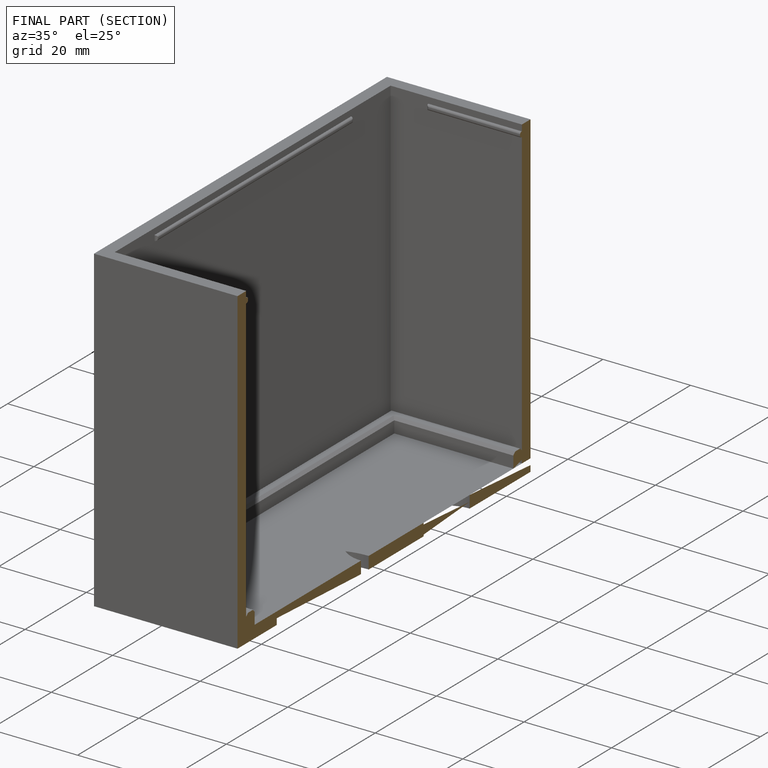
[diagram: finished part — half-section view (interior)]
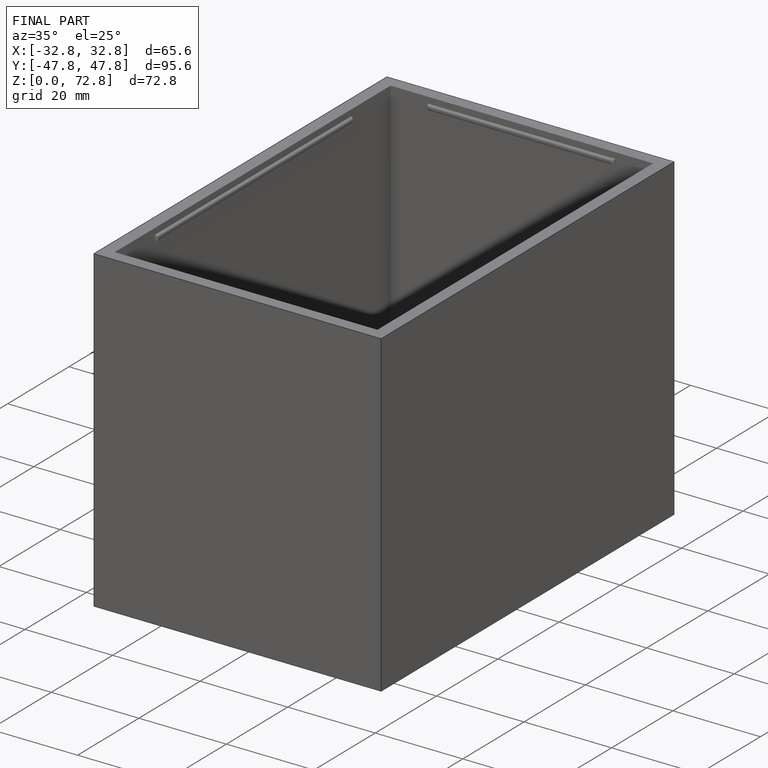
[diagram: finished part — iso view with bounding-box wireframe]
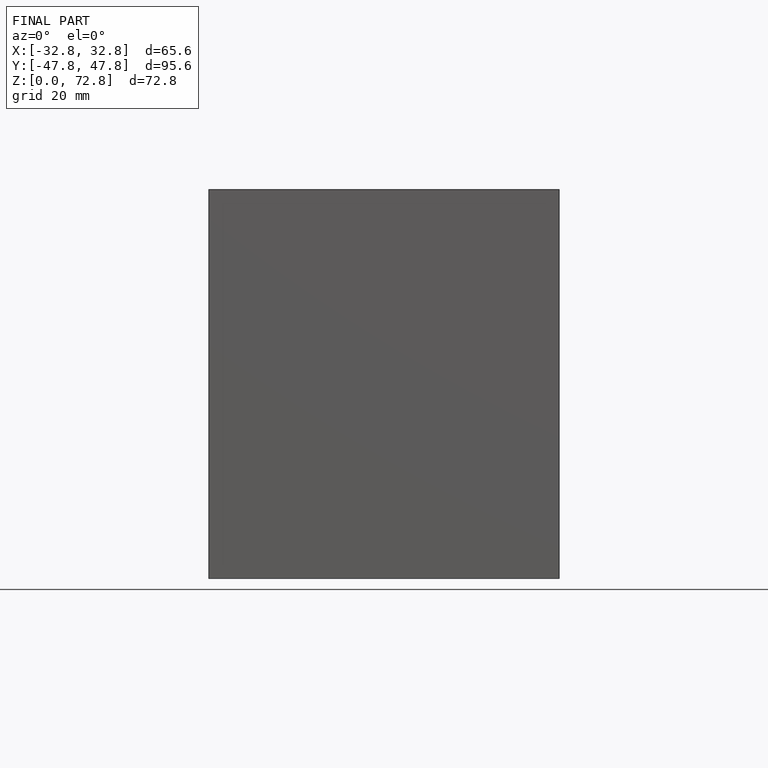
[diagram: finished part — front view with bounding-box wireframe]
